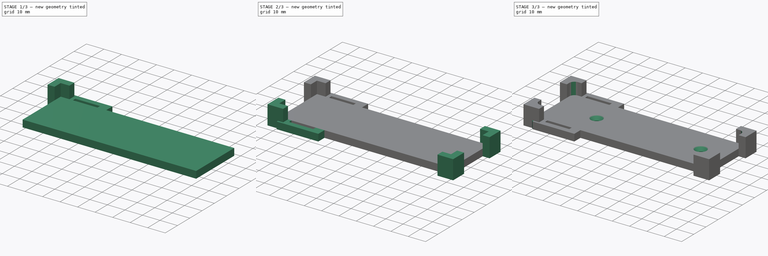
[diagram: build sequence overview — one tinted view per stage of 3, left to right]
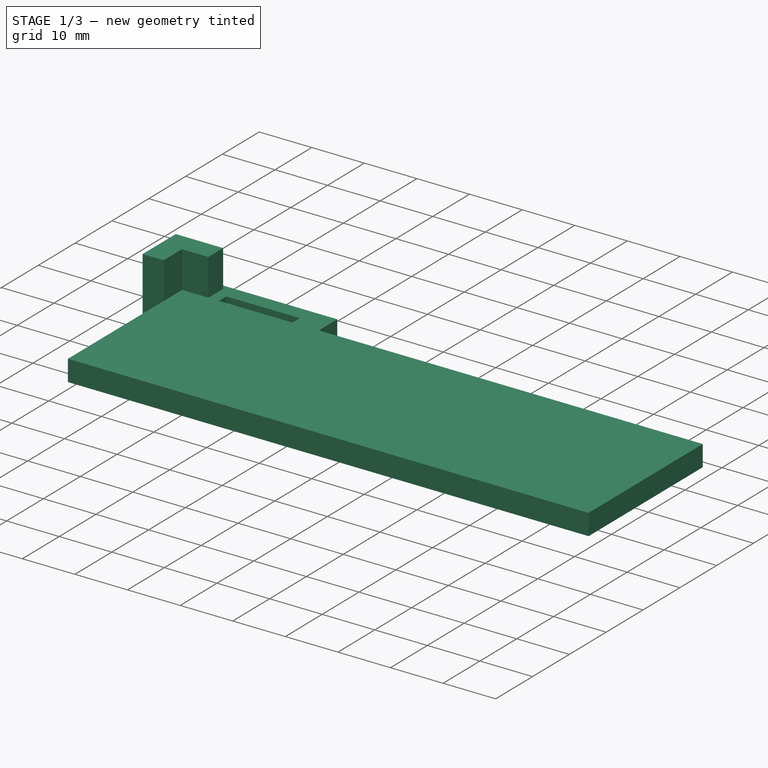
[diagram: stage 1 of 3 — iso view after this stage's code; geometry added in this stage tinted green]
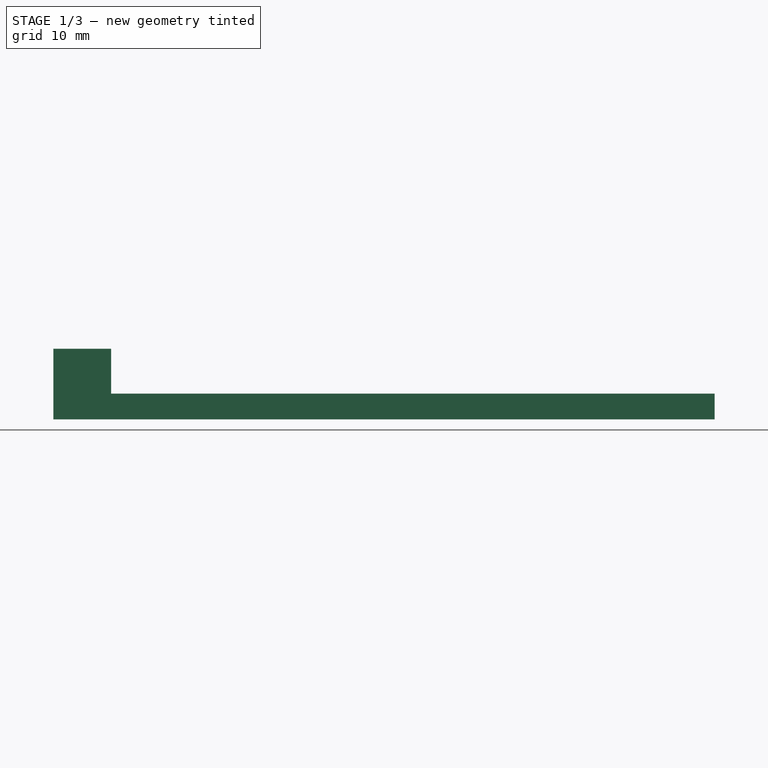
[diagram: stage 1 of 3 — front view after this stage's code; geometry added in this stage tinted green]
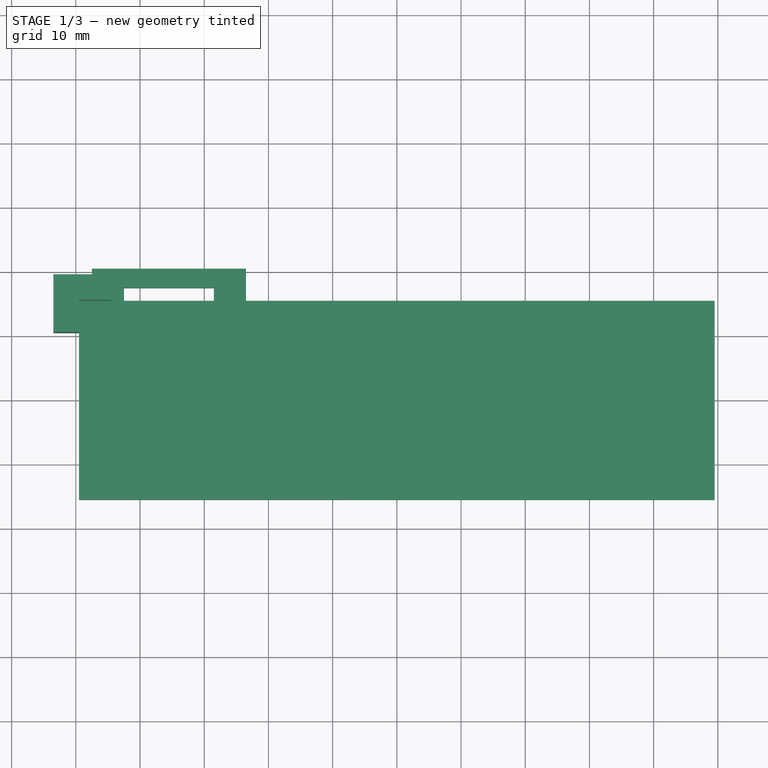
[diagram: stage 1 of 3 — top view after this stage's code; geometry added in this stage tinted green]
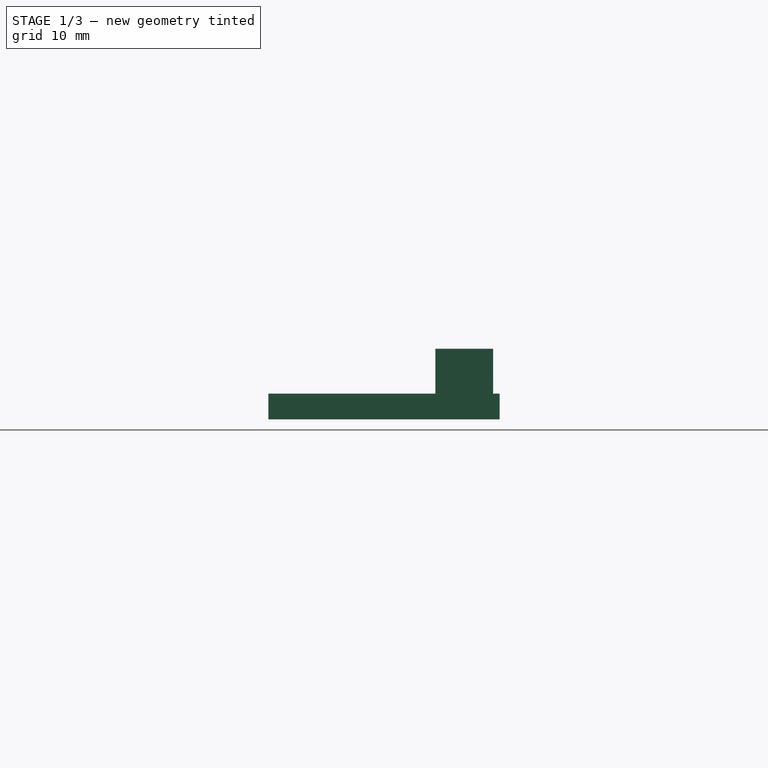
[diagram: stage 1 of 3 — right view after this stage's code; geometry added in this stage tinted green]
FCSTD DOCUMENT  (FreeCAD 0.19R24267 (Git))
Label: usbhub-mount
License: All rights reserved
LicenseURL: http://en.wikipedia.org/wiki/All_rights_reserved
objects: Sketcher::SketchObject×4, PartDesign::Pad×3, PartDesign::Mirrored×2, PartDesign::PolarPattern×1, PartDesign::MultiTransform×1, PartDesign::Chamfer×1, PartDesign::Fillet×1, PartDesign::Hole×1, PartDesign::Body×1
note: 21 computed .brp shape members not serialized (recipe doc carries the construction recipe); baked Part::Feature solids carry a one-line shape summary decoded from their .brp

FEATURE [Sketcher::SketchObject] Sketch
  FullyConstrained = true
  MapMode = 5
  Support = -> [XY_Plane]
  sketch-geometry (4):
    g0: LineSegment StartX=-49.5 StartY=-15.5 StartZ=0 EndX=49.5 EndY=-15.5 EndZ=0
    g1: LineSegment StartX=49.5 StartY=-15.5 StartZ=0 EndX=49.5 EndY=15.5 EndZ=0
    g2: LineSegment StartX=49.5 StartY=15.5 StartZ=0 EndX=-49.5 EndY=15.5 EndZ=0
    g3: LineSegment StartX=-49.5 StartY=15.5 StartZ=0 EndX=-49.5 EndY=-15.5 EndZ=0
  constraints (11):
    c: Coincident(g0,g1)
    c: Coincident(g1,g2)
    c: Coincident(g2,g3)
    c: Coincident(g3,g0)
    c: Horizontal(g0)
    c: Horizontal(g2)
    c: Vertical(g1)
    c: Vertical(g3)
    c: Symmetric(g0,g1,g-1)
    c: DistanceY(g3,g3) = 31
    c: DistanceX(g2,g2) = 99
FEATURE [PartDesign::Pad] Pad  label="plate"
  Direction = (1,1,1)
  Length = 4
  Length2 = 100
  Profile = -> Sketch
  Type = 0
FEATURE [Sketcher::SketchObject] Sketch001
  ExternalGeometry = -> [Pad]
  FullyConstrained = true
  MapMode = 5
  Support = -> [XY_Plane]
  sketch-geometry (6):
    g0: LineSegment StartX=-49.5 StartY=15.5 StartZ=0 EndX=-44.5 EndY=15.5 EndZ=0
    g1: LineSegment StartX=-44.5 StartY=15.5 StartZ=0 EndX=-44.5 EndY=19.5 EndZ=0
    g2: LineSegment StartX=-44.5 StartY=19.5 StartZ=0 EndX=-53.5 EndY=19.5 EndZ=0
    g3: LineSegment StartX=-53.5 StartY=19.5 StartZ=0 EndX=-53.5 EndY=10.5 EndZ=0
    g4: LineSegment StartX=-53.5 StartY=10.5 StartZ=0 EndX=-49.5 EndY=10.5 EndZ=0
    g5: LineSegment StartX=-49.5 StartY=15.5 StartZ=0 EndX=-49.5 EndY=10.5 EndZ=0
  constraints (17):
    c: Coincident(g0,g-4)
    c: PointOnObject(g0,g-3)
    c: Coincident(g1,g0)
    c: Vertical(g1)
    c: Horizontal(g2)
    c: Vertical(g3)
    c: PointOnObject(g4,g-4)
    c: Horizontal(g4)
    c: Coincident(g5,g0)
    c: Coincident(g5,g4)
    c: Coincident(g3,g4)
    c: Coincident(g3,g2)
    c: Coincident(g2,g1)
    c: Equal(g4,g1)
    c: Equal(g5,g0)
    c: DistanceY(g1,g1) = 4
    c: DistanceY(g5,g5) = 5
FEATURE [PartDesign::Pad] Pad001  label="corner"
  BaseFeature = -> Pad
  Direction = (1,1,1)
  Length = 11
  Length2 = 100
  Profile = -> Sketch001
  Type = 0
FEATURE [Sketcher::SketchObject] Sketch002
  ExternalGeometry = -> [Pad]
  FullyConstrained = true
  MapMode = 5
  Support = -> [XY_Plane]
  sketch-geometry (8):
    g0: LineSegment StartX=-47.5 StartY=15.5 StartZ=0 EndX=-47.5 EndY=20.5 EndZ=0
    g1: LineSegment StartX=-47.5 StartY=20.5 StartZ=0 EndX=-23.5 EndY=20.5 EndZ=0
    g2: LineSegment StartX=-23.5 StartY=20.5 StartZ=0 EndX=-23.5 EndY=15.5 EndZ=0
    g3: LineSegment StartX=-23.5 StartY=15.5 StartZ=0 EndX=-28.5 EndY=15.5 EndZ=0
    g4: LineSegment StartX=-28.5 StartY=15.5 StartZ=0 EndX=-28.5 EndY=17.5 EndZ=0
    g5: LineSegment StartX=-28.5 StartY=17.5 StartZ=0 EndX=-42.5 EndY=17.5 EndZ=0
    g6: LineSegment StartX=-42.5 StartY=17.5 StartZ=0 EndX=-42.5 EndY=15.5 EndZ=0
    g7: LineSegment StartX=-42.5 StartY=15.5 StartZ=0 EndX=-47.5 EndY=15.5 EndZ=0
  constraints (24):
    c: PointOnObject(g0,g-3)
    c: Vertical(g0)
    c: Horizontal(g1)
    c: Coincident(g2,g1)
    c: PointOnObject(g2,g-3)
    c: Vertical(g2)
    c: Coincident(g3,g2)
    c: PointOnObject(g3,g-3)
    c: Coincident(g4,g3)
    c: Coincident(g5,g4)
    c: Horizontal(g5)
    c: Coincident(g6,g5)
    c: PointOnObject(g6,g-3)
    c: Vertical(g6)
    c: Coincident(g7,g6)
    c: Coincident(g7,g0)
    c: Vertical(g4)
    c: Coincident(g0,g1)
    c: Equal(g7,g3)
    c: DistanceX(g3,g3) = 5
    c: DistanceX(g5,g5) = 14
    c: DistanceY(g2,g4) = 2
    c: DistanceY(g4,g1) = 3
    c: DistanceX(g-3,g0) = 2
FEATURE [PartDesign::Pad] Pad002  label="bracket"
  BaseFeature = -> Pad001
  Direction = (1,1,1)
  Length = 4
  Length2 = 100
  Profile = -> Sketch002
  Type = 0
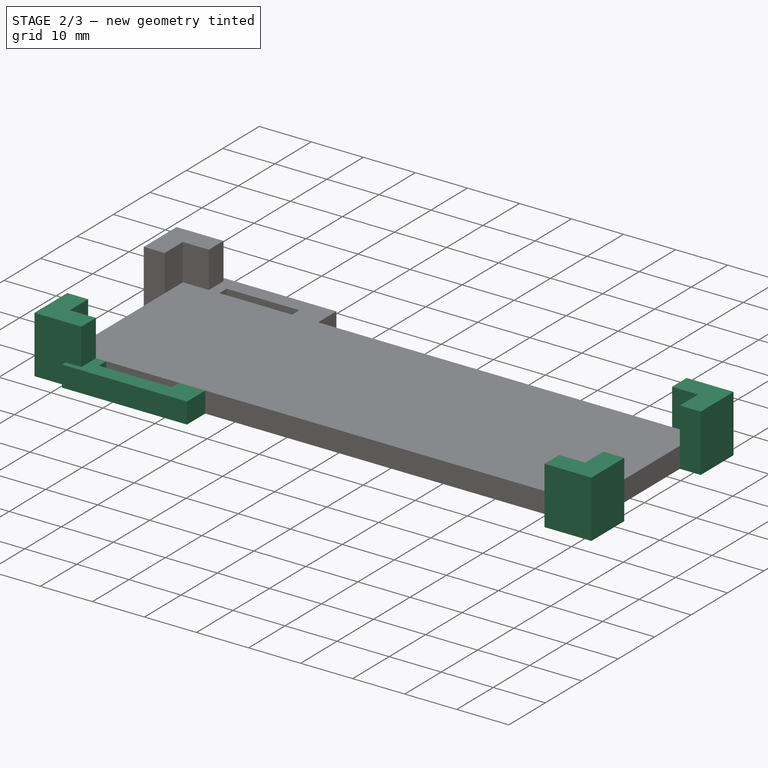
[diagram: stage 2 of 3 — iso view after this stage's code; geometry added in this stage tinted green]
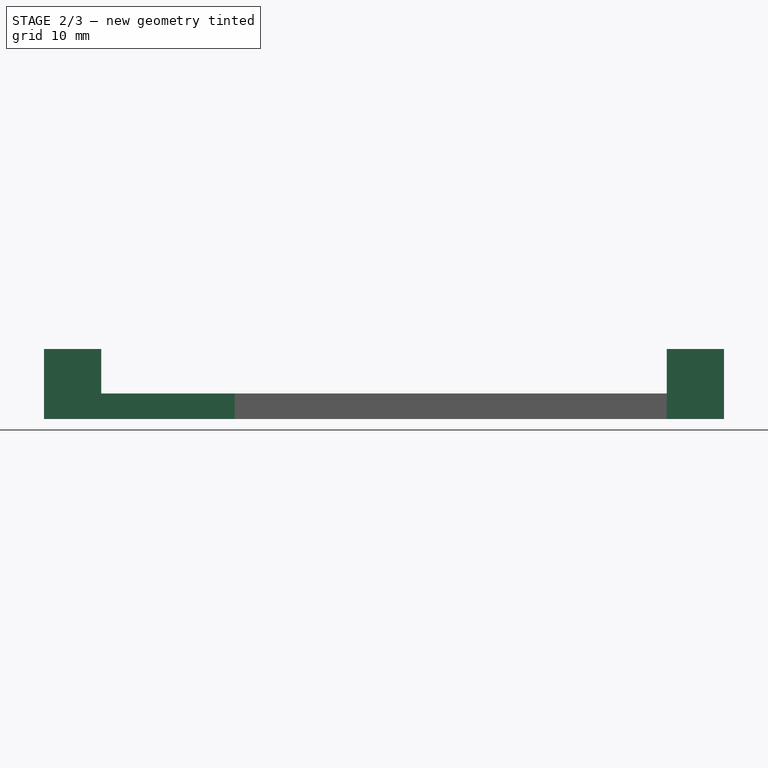
[diagram: stage 2 of 3 — front view after this stage's code; geometry added in this stage tinted green]
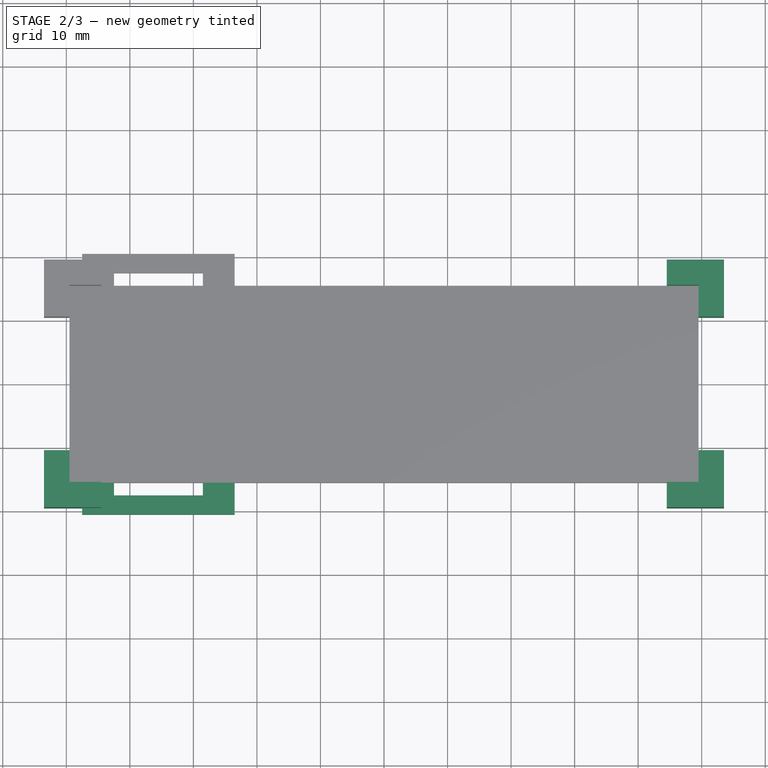
[diagram: stage 2 of 3 — top view after this stage's code; geometry added in this stage tinted green]
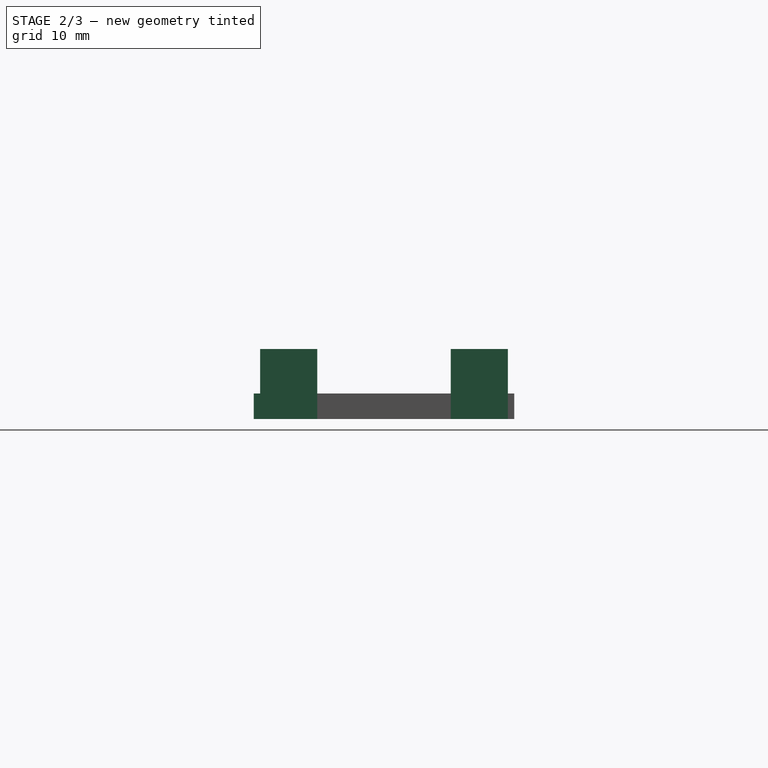
[diagram: stage 2 of 3 — right view after this stage's code; geometry added in this stage tinted green]
FEATURE [PartDesign::Mirrored] Mirrored
  MirrorPlane = -> Sketch001 [V_Axis]
FEATURE [PartDesign::PolarPattern] PolarPattern
  Angle = 360
  Axis = -> Sketch001 [N_Axis]
  Occurrences = 2
FEATURE [PartDesign::MultiTransform] MultiTransform
  BaseFeature = -> Pad002
  Originals = -> [Pad001]
  Transformations = -> [Mirrored,PolarPattern]
FEATURE [PartDesign::Mirrored] Mirrored001  label="Mirror"
  BaseFeature = -> MultiTransform
  MirrorPlane = -> Sketch002 [H_Axis]
  Originals = -> [Pad002]
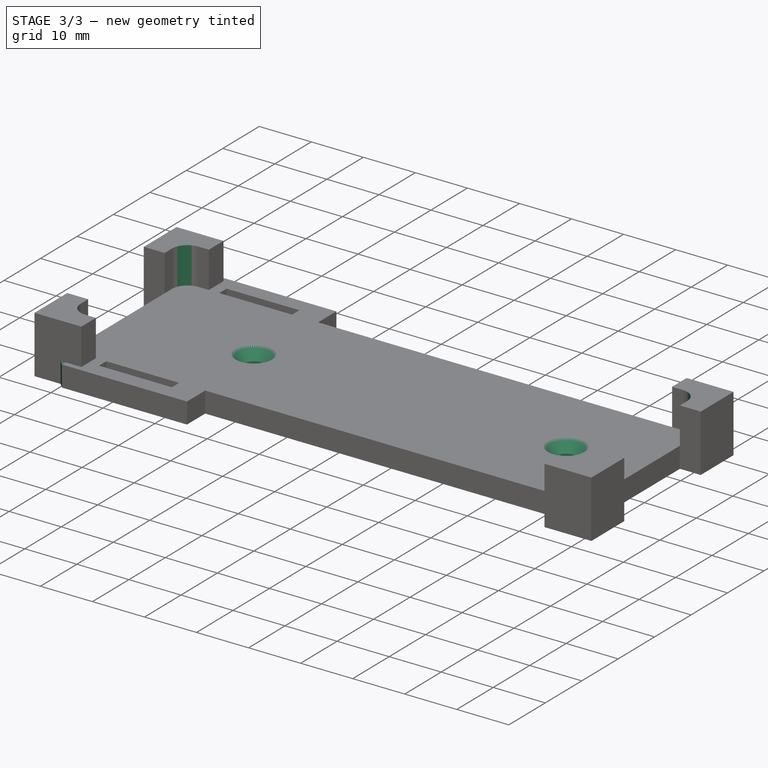
[diagram: stage 3 of 3 — iso view after this stage's code; geometry added in this stage tinted green]
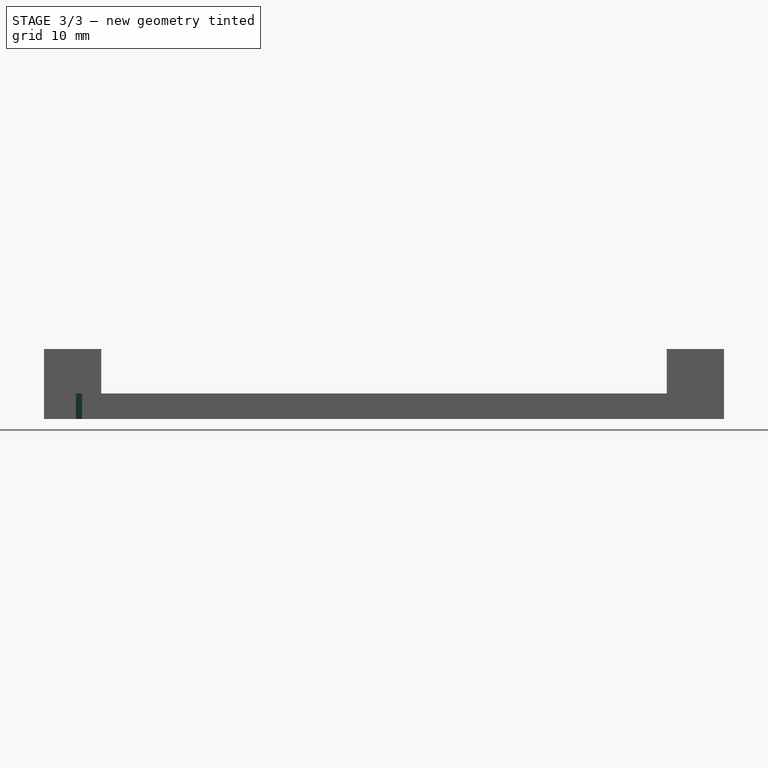
[diagram: stage 3 of 3 — front view after this stage's code; geometry added in this stage tinted green]
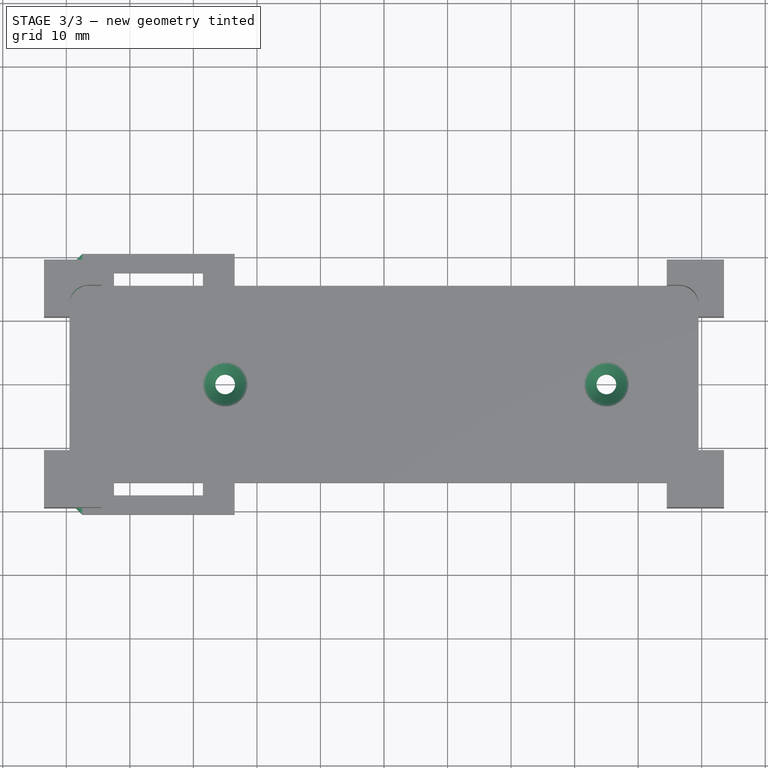
[diagram: stage 3 of 3 — top view after this stage's code; geometry added in this stage tinted green]
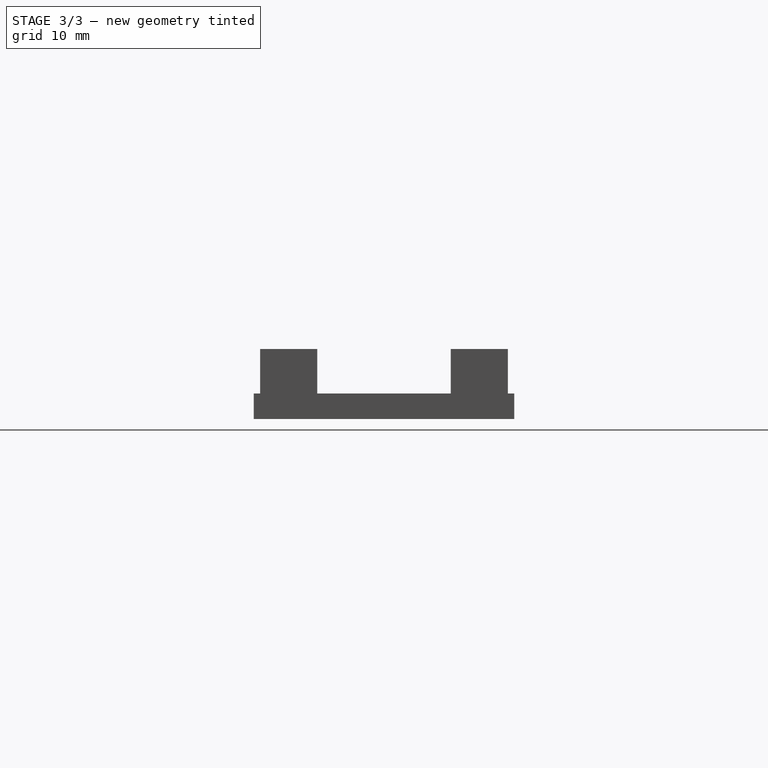
[diagram: stage 3 of 3 — right view after this stage's code; geometry added in this stage tinted green]
FEATURE [PartDesign::Chamfer] Chamfer
  Angle = 45
  Base = -> Mirrored001 [Edge77,Edge132]
  BaseFeature = -> Mirrored001
  ChamferType = 0
  FlipDirection = false
  Size = 0.99
  Size2 = 1
  SupportTransform = false
FEATURE [PartDesign::Fillet] Fillet
  Base = -> Chamfer [Edge71,Edge166,Edge161,Edge158]
  BaseFeature = -> Chamfer
  Radius = 3
  SupportTransform = false
FEATURE [Sketcher::SketchObject] Sketch003
  AttachmentOffset = pos=(0,0,4) rot=(0,0,1;0rad)
  FullyConstrained = true
  MapMode = 5
  Placement = pos=(0,0,4) rot=(0,0,1;0rad)
  Support = -> [XY_Plane]
  sketch-geometry (2):
    g0: Circle CenterX=-25 CenterY=0 CenterZ=0 NormalX=0 NormalY=0 NormalZ=1 AngleXU=0 Radius=1.5
    g1: Circle CenterX=35 CenterY=0 CenterZ=0 NormalX=0 NormalY=0 NormalZ=1 AngleXU=0 Radius=1.5
  constraints (6):
    c: PointOnObject(g0,g-1)
    c: PointOnObject(g1,g-1)
    c: Equal(g0,g1)
    c: Diameter(g1) = 3
    c: DistanceX(g-1,g1) = 35
    c: DistanceX(g0,g-1) = 25
FEATURE [PartDesign::Hole] Hole
  BaseFeature = -> Fillet
  Depth = 25
  DepthType = 0
  Diameter = 3.1
  DrillForDepth = false
  DrillPoint = 1
  DrillPointAngle = 118
  HoleCutCountersinkAngle = 90
  HoleCutCustomValues = false
  HoleCutDepth = 0
  HoleCutDiameter = 7
  HoleCutType = 2
  ModelActualThread = false
  Profile = -> Sketch003
  Tapered = false
  TaperedAngle = 90
  ThreadAngle = 0
  ThreadClass = 0
  ThreadCutOffInner = 0
  ThreadCutOffOuter = 0
  ThreadDirection = 0
  ThreadFit = 0
  ThreadPitch = 0
  ThreadSize = 0
  ThreadType = 0
  Threaded = false
FEATURE [PartDesign::Body] Body
  Group = -> [Sketch,Pad,Sketch001,Pad001,Sketch002,Pad002,MultiTransform,Mirrored,PolarPattern,Mirrored001,Chamfer,Fillet,Sketch003,Hole]
  Origin = -> Origin
  Tip = -> Hole
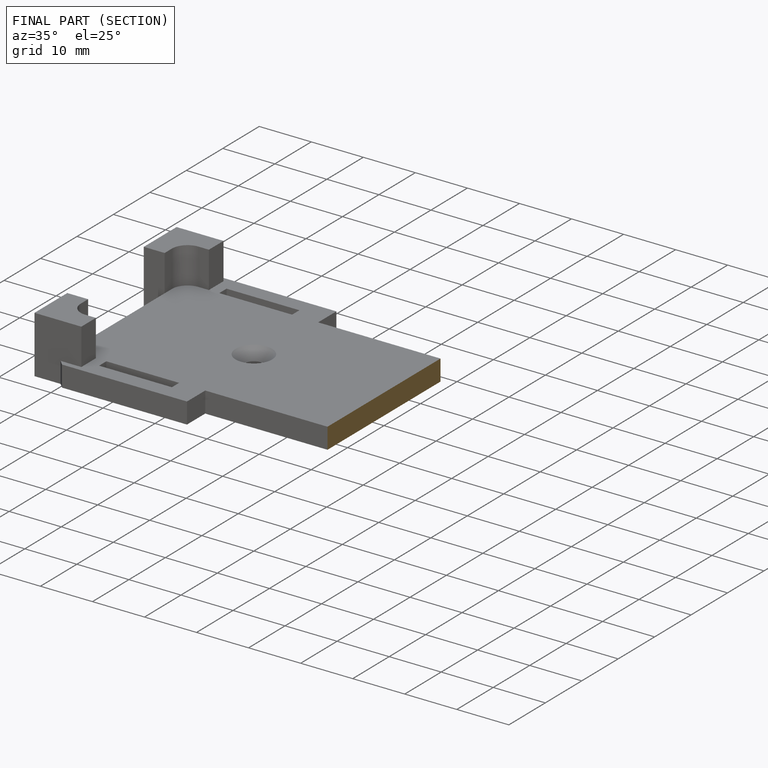
[diagram: finished part — half-section view (interior)]
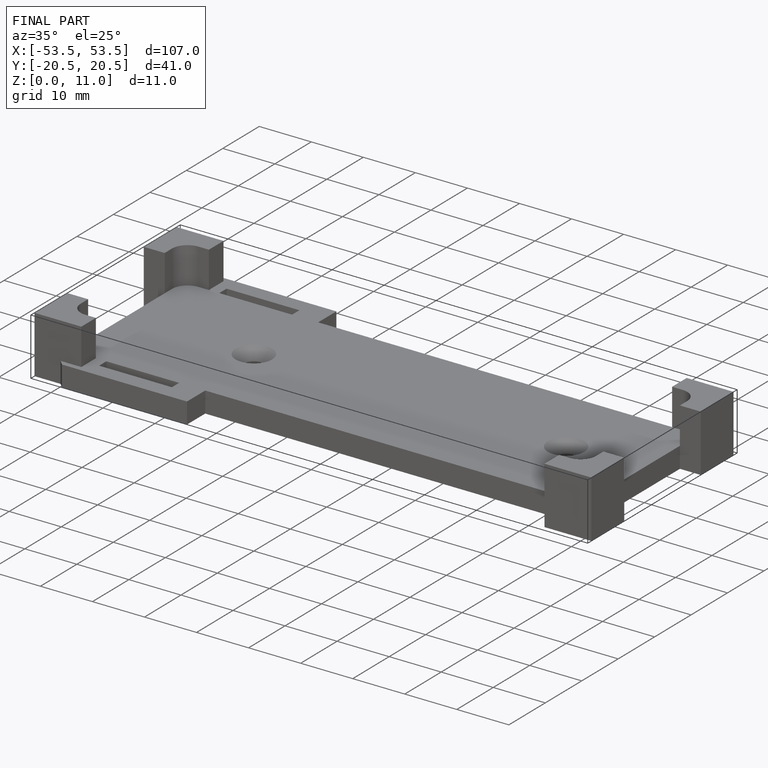
[diagram: finished part — iso view with bounding-box wireframe]
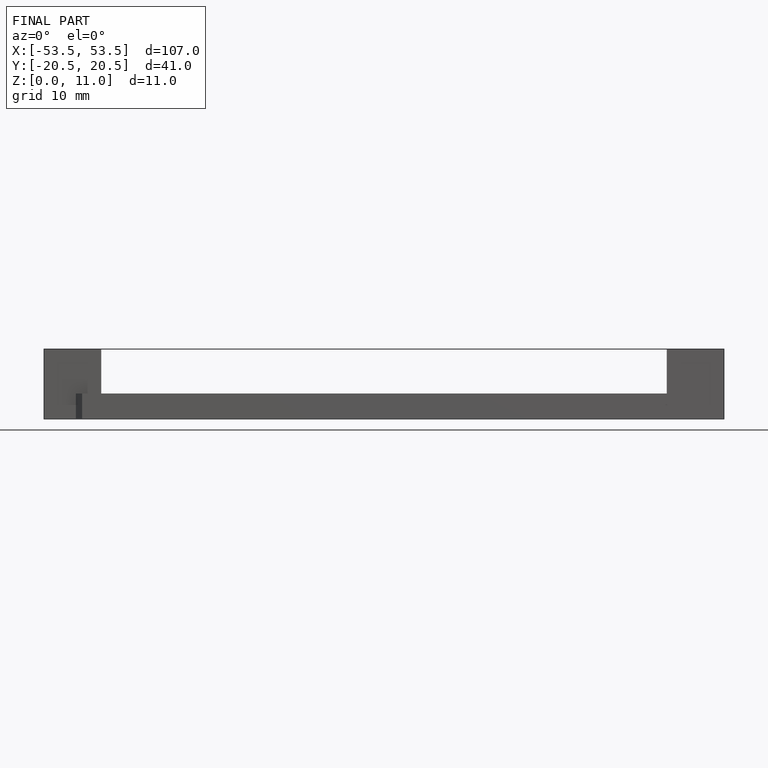
[diagram: finished part — front view with bounding-box wireframe]
